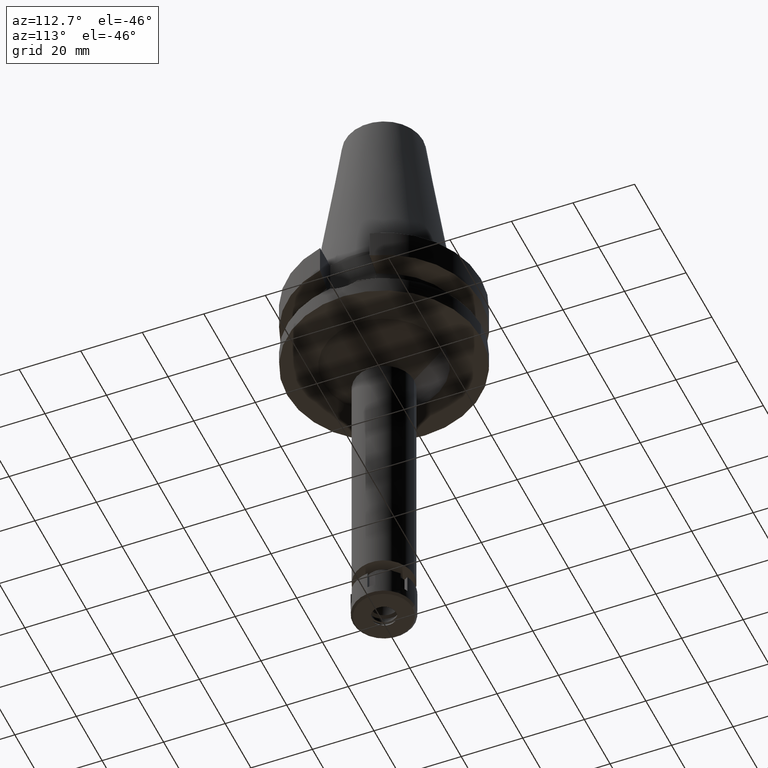
[diagram: clean part render]
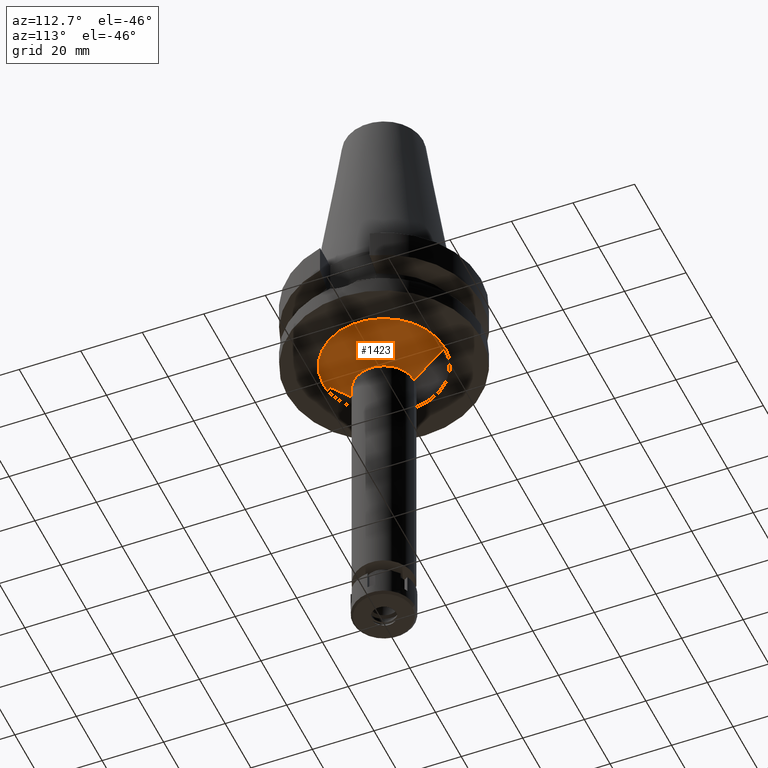
[diagram: same view with one face highlighted and labeled with its STEP entity id]
A machine part, auxiliary view. The second image highlights one B-rep face of the part: STEP entity #1423.
In plain terms, the highlighted conical surface has half-angle 45 deg.
Its self-contained STEP definition (entity closure, byte-faithful):
#11 = VERTEX_POINT ( 'NONE', #2314 ) ;
#56 = DIRECTION ( 'NONE',  ( 0.0000000000000000000, -0.7071067811865474617, -0.7071067811865474617 ) ) ;
#209 = EDGE_CURVE ( 'NONE', #635, #1230, #1790, .T. ) ;
#329 = DIRECTION ( 'NONE',  ( 0.0000000000000000000, 1.000000000000000000, 0.0000000000000000000 ) ) ;
#387 = CARTESIAN_POINT ( 'NONE',  ( 0.0000000000000000000, 9.750000000000000000, -37.00000000000000000 ) ) ;
#635 = VERTEX_POINT ( 'NONE', #2870 ) ;
#697 = VECTOR ( 'NONE', #56, 1000.000000000000114 ) ;
#700 = CARTESIAN_POINT ( 'NONE',  ( 0.0000000000000000000, -19.75000000000000000, -27.00000000000000000 ) ) ;
#776 = ORIENTED_EDGE ( 'NONE', *, *, #3193, .F. ) ;
#824 = EDGE_LOOP ( 'NONE', ( #1889, #1576, #2114, #776 ) ) ;
#1045 = AXIS2_PLACEMENT_3D ( 'NONE', #2234, #2266, #3617 ) ;
#1230 = VERTEX_POINT ( 'NONE', #1525 ) ;
#1420 = FACE_OUTER_BOUND ( 'NONE', #824, .T. ) ;
#1423 = ADVANCED_FACE ( 'NONE', ( #1420 ), #1575, .T. ) ;
#1525 = CARTESIAN_POINT ( 'NONE',  ( 0.0000000000000000000, -9.750000000000000000, -37.00000000000000000 ) ) ;
#1575 = CONICAL_SURFACE ( 'NONE', #1045, 14.75000000000000000, 0.7853981633972997312 ) ;
#1576 = ORIENTED_EDGE ( 'NONE', *, *, #209, .T. ) ;
#1790 = LINE ( 'NONE', #700, #2224 ) ;
#1889 = ORIENTED_EDGE ( 'NONE', *, *, #2778, .T. ) ;
#1890 = CARTESIAN_POINT ( 'NONE',  ( 0.0000000000000000000, 0.0000000000000000000, -27.00000000000000000 ) ) ;
#1952 = EDGE_CURVE ( 'NONE', #3191, #1230, #2192, .T. ) ;
#2114 = ORIENTED_EDGE ( 'NONE', *, *, #1952, .F. ) ;
#2192 = CIRCLE ( 'NONE', #3300, 9.750000000000000000 ) ;
#2224 = VECTOR ( 'NONE', #2655, 1000.000000000000114 ) ;
#2234 = CARTESIAN_POINT ( 'NONE',  ( 0.0000000000000000000, 0.0000000000000000000, -32.00000000000000000 ) ) ;
#2266 = DIRECTION ( 'NONE',  ( 0.0000000000000000000, 0.0000000000000000000, 1.000000000000000000 ) ) ;
#2314 = CARTESIAN_POINT ( 'NONE',  ( 0.0000000000000000000, 19.75000000000000000, -27.00000000000000000 ) ) ;
#2655 = DIRECTION ( 'NONE',  ( 0.0000000000000000000, 0.7071067811865474617, -0.7071067811865474617 ) ) ;
#2742 = DIRECTION ( 'NONE',  ( 0.0000000000000000000, 1.000000000000000000, 0.0000000000000000000 ) ) ;
#2778 = EDGE_CURVE ( 'NONE', #11, #635, #3180, .T. ) ;
#2870 = CARTESIAN_POINT ( 'NONE',  ( 0.0000000000000000000, -19.75000000000000000, -27.00000000000000000 ) ) ;
#2876 = DIRECTION ( 'NONE',  ( 0.0000000000000000000, 0.0000000000000000000, -1.000000000000000000 ) ) ;
#2899 = LINE ( 'NONE', #3415, #697 ) ;
#2915 = CARTESIAN_POINT ( 'NONE',  ( 0.0000000000000000000, 0.0000000000000000000, -37.00000000000000000 ) ) ;
#3022 = DIRECTION ( 'NONE',  ( 0.0000000000000000000, 0.0000000000000000000, -1.000000000000000000 ) ) ;
#3062 = AXIS2_PLACEMENT_3D ( 'NONE', #1890, #3022, #2742 ) ;
#3180 = CIRCLE ( 'NONE', #3062, 19.75000000000000000 ) ;
#3191 = VERTEX_POINT ( 'NONE', #387 ) ;
#3193 = EDGE_CURVE ( 'NONE', #11, #3191, #2899, .T. ) ;
#3300 = AXIS2_PLACEMENT_3D ( 'NONE', #2915, #2876, #329 ) ;
#3415 = CARTESIAN_POINT ( 'NONE',  ( 0.0000000000000000000, 19.75000000000000000, -27.00000000000000000 ) ) ;
#3617 = DIRECTION ( 'NONE',  ( 0.0000000000000000000, 1.000000000000000000, 0.0000000000000000000 ) ) ;